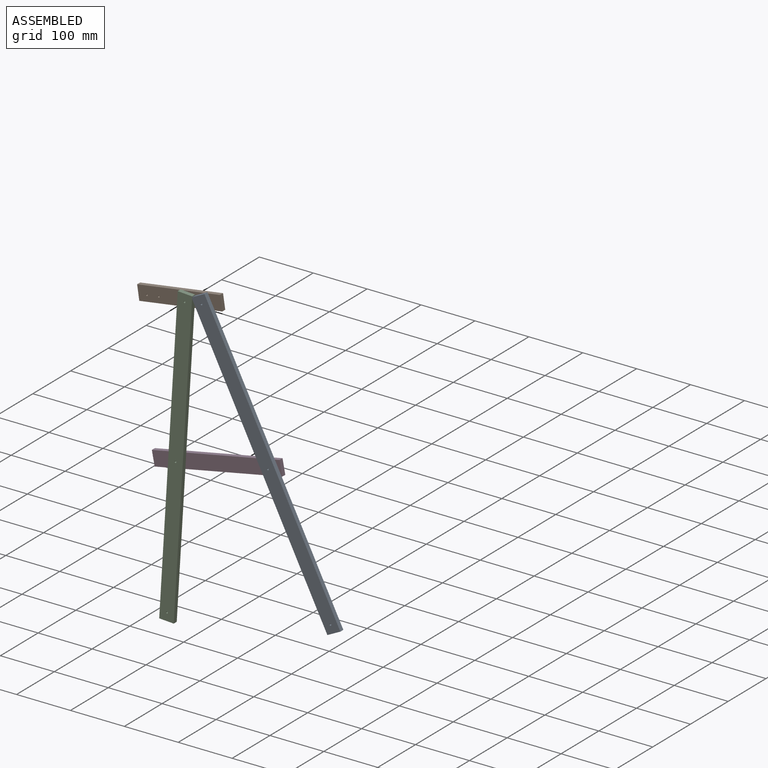
[diagram: assembled view]
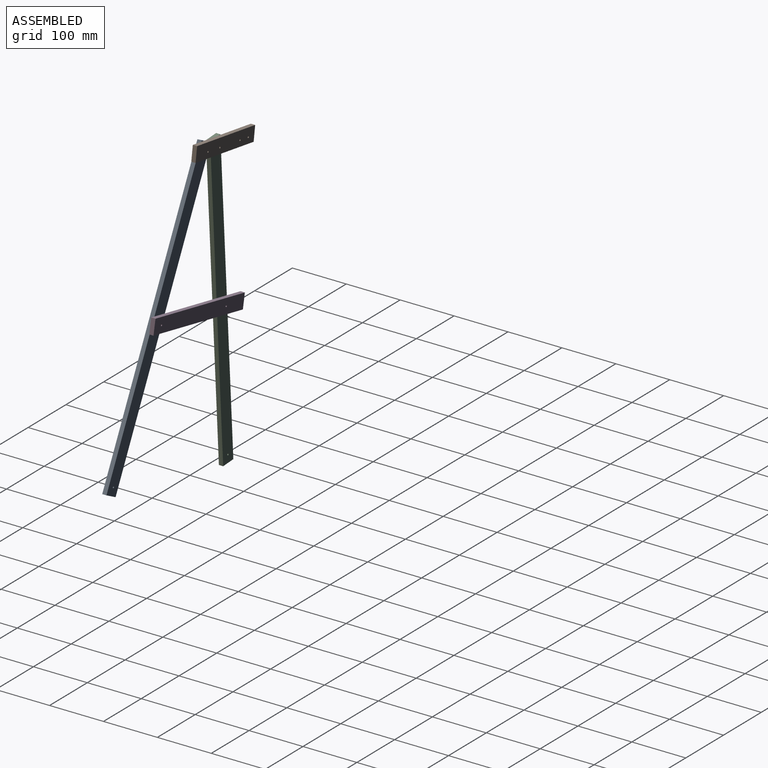
[diagram: assembled view, second angle]
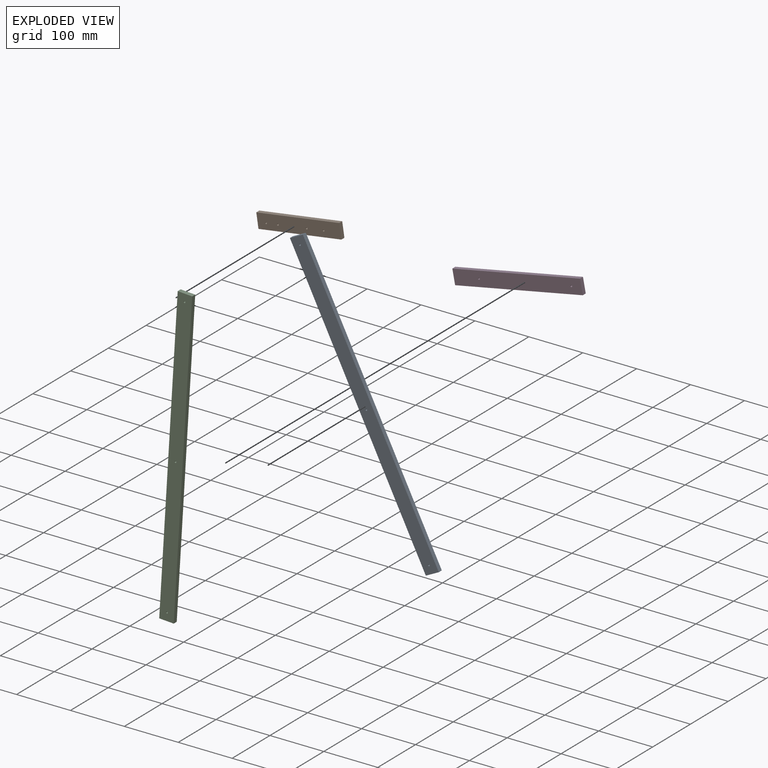
[diagram: exploded view]
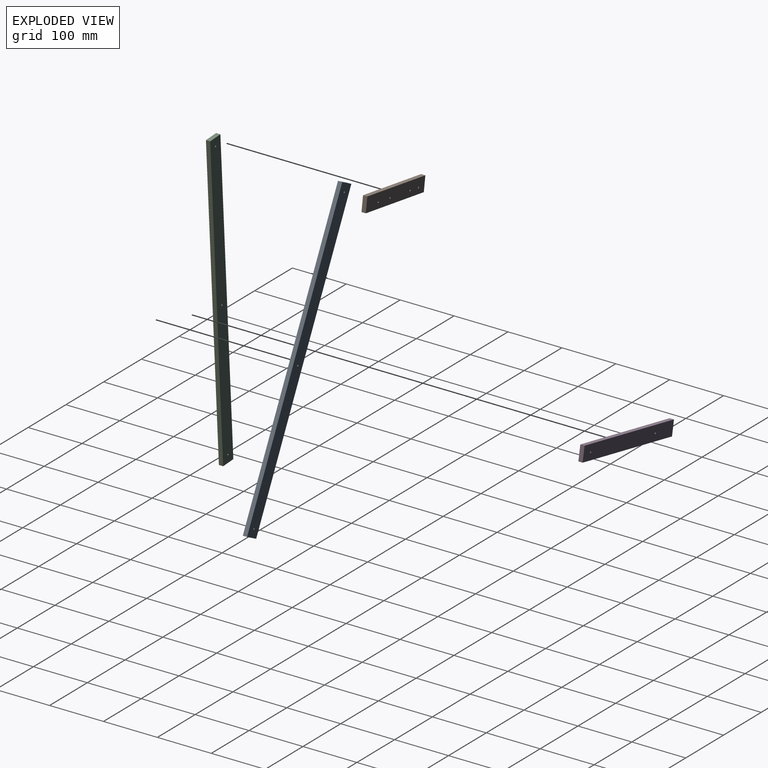
[diagram: exploded view, second angle]
ASSEMBLY  parts=4 mates=4
PART A: 9 faces, bbox 27x7.9x558.8 mm
  f0: plane 26.99x7.94mm, normal (0,0,1), area 214.2mm2, adj f1,f3,f4,f5
  f1: plane 558.8x7.94mm, normal (-1,0,0), area 4435.5mm2, adj f0,f2,f4,f5
  f2: plane 26.99x7.94mm, normal (0,0,-1), area 214.2mm2, adj f1,f3,f4,f5
  f3: plane 558.8x7.94mm, normal (1,0,0), area 4435.5mm2, adj f0,f2,f4,f5
  f4: plane 558.8x26.99mm, normal (0,-1,0), area 15056.9mm2, adj f0,f1,f2,f3,f6,f7,f8
  f5: plane 558.8x26.99mm, normal (0,1,0), area 15056.9mm2, adj f0,f1,f2,f3,f6,f7,f8
  f6: cylinder r=1.59mm len=7.94mm, axis (0,-1,0), area 79.2mm2, adj f4,f5
  f7: cylinder r=1.59mm len=7.94mm, axis (0,-1,0), area 79.2mm2, adj f4,f5
  f8: cylinder r=1.59mm len=7.94mm, axis (0,-1,0), area 79.2mm2, adj f4,f5
PART B: 10 faces, bbox 155.6x7.9x27 mm
  f0: plane 155.58x7.94mm, normal (0,0,1), area 1234.9mm2, adj f1,f7,f8,f9
  f1: plane 26.99x7.94mm, normal (-1,0,0), area 214.2mm2, adj f0,f2,f8,f9
  f2: plane 155.58x7.94mm, normal (0,0,-1), area 1234.9mm2, adj f1,f7,f8,f9
  f3: cylinder r=1.59mm len=7.94mm, axis (0,1,0), area 79.2mm2, adj f8,f9
  f4: cylinder r=1.59mm len=7.94mm, axis (0,1,0), area 79.2mm2, adj f8,f9
  f5: cylinder r=1.59mm len=7.94mm, axis (0,1,0), area 79.2mm2, adj f8,f9
  f6: cylinder r=1.59mm len=7.94mm, axis (0,1,0), area 79.2mm2, adj f8,f9
  f7: plane 26.99x7.94mm, normal (1,0,0), area 214.2mm2, adj f0,f2,f8,f9
  f8: plane 155.58x26.99mm, normal (0,-1,0), area 4166.9mm2, adj f0,f1,f2,f3,f4,f5,f6,f7
  f9: plane 155.58x26.99mm, normal (0,1,0), area 4166.9mm2, adj f0,f1,f2,f3,f4,f5,f6,f7
PART C: same geometry as A
PART D: 8 faces, bbox 241.3x7.9x27 mm
  f0: plane 241.3x7.94mm, normal (0,0,1), area 1915.3mm2, adj f1,f5,f6,f7
  f1: plane 26.99x7.94mm, normal (-1,0,0), area 214.2mm2, adj f0,f2,f6,f7
  f2: plane 241.3x7.94mm, normal (0,0,-1), area 1915.3mm2, adj f1,f5,f6,f7
  f3: cylinder r=1.59mm len=7.94mm, axis (0,1,0), area 79.2mm2, adj f6,f7
  f4: cylinder r=1.59mm len=7.94mm, axis (0,1,0), area 79.2mm2, adj f6,f7
  f5: plane 26.99x7.94mm, normal (1,0,0), area 214.2mm2, adj f0,f2,f6,f7
  f6: plane 241.3x26.99mm, normal (0,-1,0), area 6496.2mm2, adj f0,f1,f2,f3,f4,f5
  f7: plane 241.3x26.99mm, normal (0,1,0), area 6496.2mm2, adj f0,f1,f2,f3,f4,f5
PLACE A rot(axis=(0,-1,0),26.8deg) t=(163.36,35.49,16.24)mm
PLACE B rot(axis=(0,-1,0),8.6deg) t=(-30.23,43.43,228.29)mm
PLACE C rot(axis=(0,1,0),3.5deg) t=(-4.68,35.49,-32.64)mm
PLACE D rot(axis=(0,-1,0),11.1deg) t=(39.73,43.43,-30.31)mm
MATE revolute C.f8 <-> B.f5  axis (0,-1,0) through (-17.76,35.49,241.41)mm
MATE revolute C.f7 <-> D.f3  axis (0,1,0) through (-34.53,35.49,-31.12)mm
MATE revolute D.f4 <-> A.f7  axis (0,-1,0) through (136.84,35.49,2.47)mm
MATE revolute B.f6 <-> A.f8  axis (0,-1,0) through (13.63,35.49,246.15)mm
